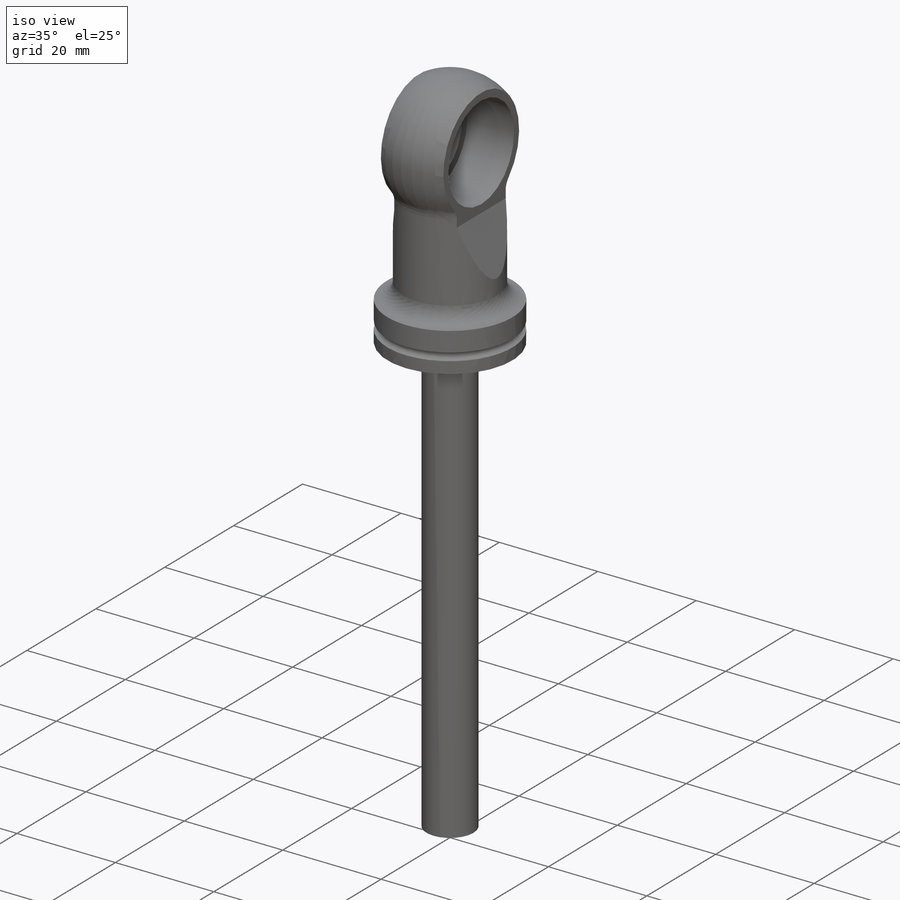
[diagram: iso view]
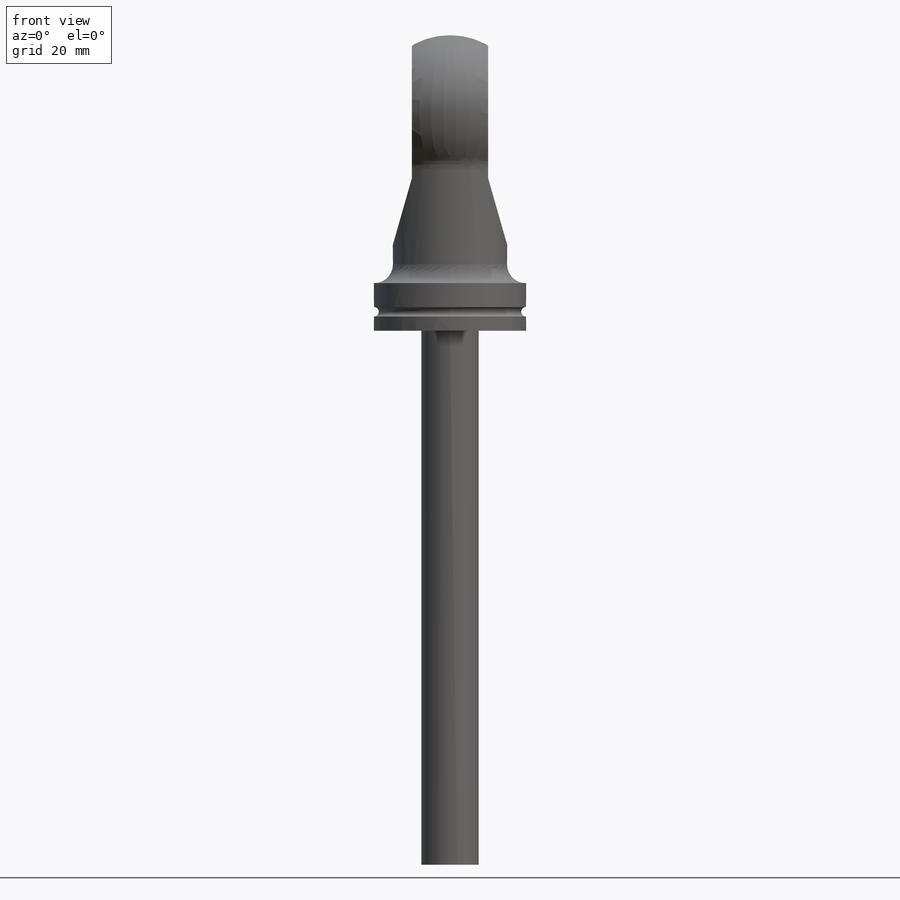
[diagram: front view]
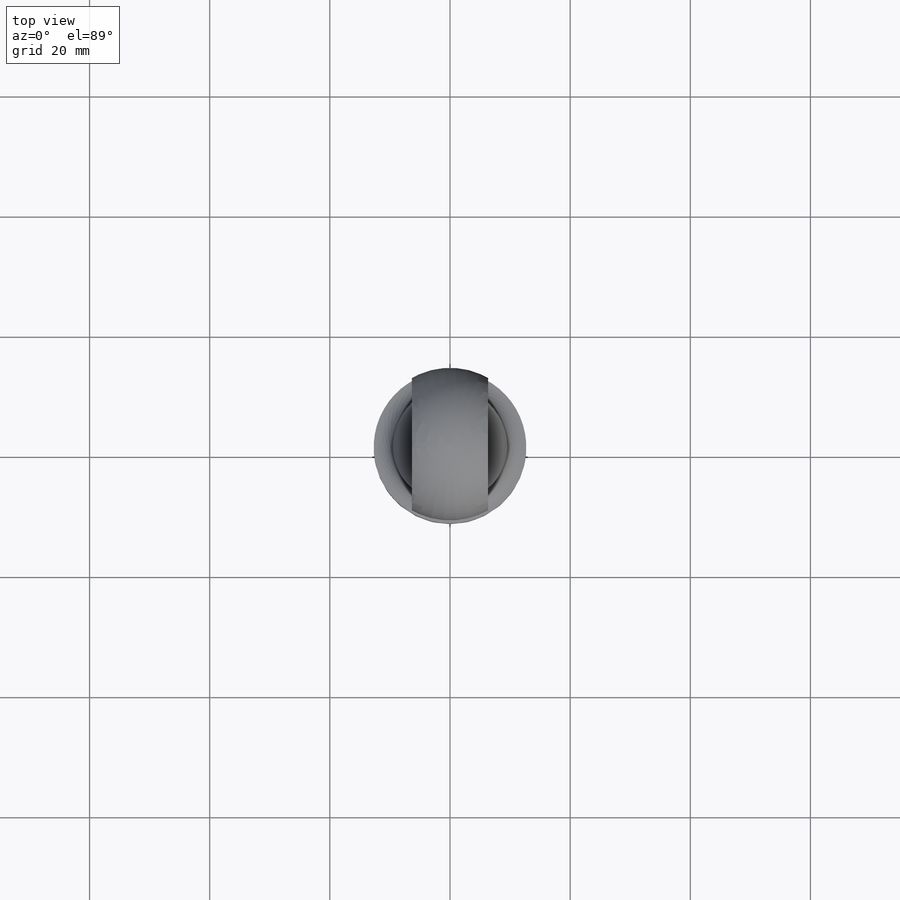
[diagram: top view]
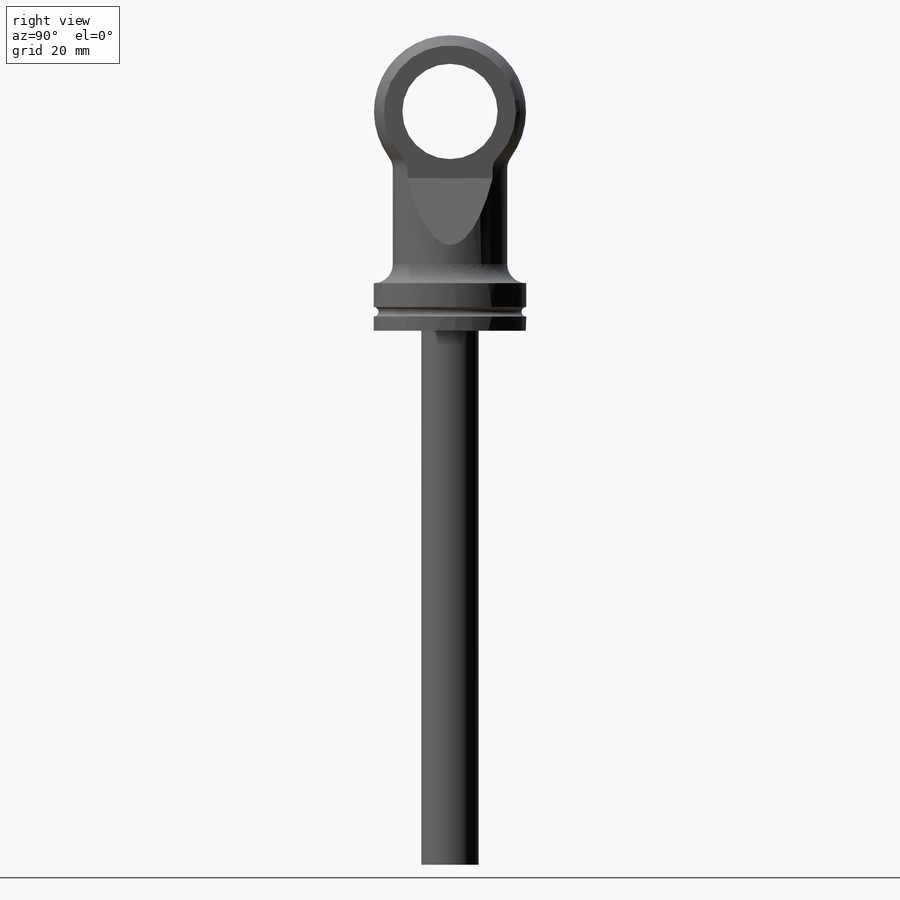
[diagram: right view]
SOLIDWORKS PART (.sldprt)
format: sldprt  version: not decoded by parser v0  size: 279,552 bytes
history: native  units: mm
features: sketch x6, cut_extrude x3, material x1, revolve x1, plane x1, extrude x1 (+11 scaffold rows collapsed)
feature tree (24):
  scaffold x11  (default folders/planes/origin — collapsed)
  material  "6061 Alloy"
  sketch  "Sketch1"  dims[c1.D1=25.4mm c1.D3=12.7mm c1.D6=3.1496mm c1.D7=1.5875mm c1.D8=1.5875mm c1.D9=3.1496mm c1.D2=9.525mm c2.D3=36.5125mm c2.D4=12.7mm c2.D5=7.9375mm c2.D8=3.175mm]
  revolve  "Revolve1"  Angle=360deg
  sketch  "Sketch2"  dims[c1.D2=12.7mm c1.D1=12.7mm c2.D2=11.1125mm c2.D3=14.2875mm]
  cut_extrude  "Extrude1"  [1 undecoded]
  sketch  "Sketch4"  dims[D1=15.875mm]
  cut_extrude  "Extrude3"  [1 undecoded]
  plane  "Plane1"  Offset=3.175mm
  sketch  "Sketch5"  dims[D1=19.05mm]
  cut_extrude  "Extrude4"  [1 undecoded]
  sketch  "Sketch6"  dims[D1=9.525mm]
  extrude  "Extrude5"  Depth=88.9mm
  sketch  "3DSketch1"
decode coverage: 7 of 11 modeling features carry decoded parameters
note: 3 parameter values undecoded
summary: no parameter record found for 3 features
note: suppression state not decoded; provenance and decode notes live in map.json
